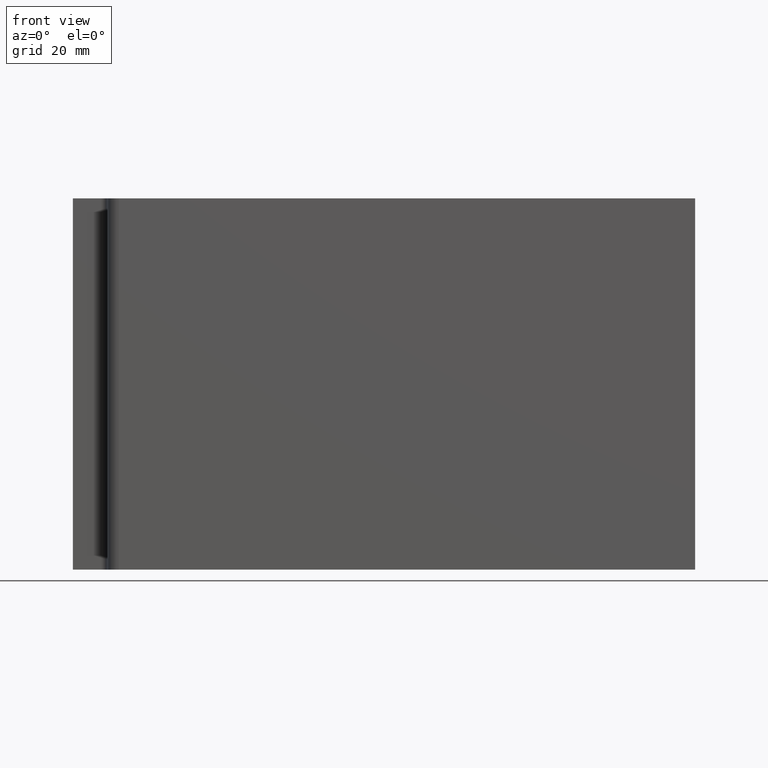
[diagram: clean part render]
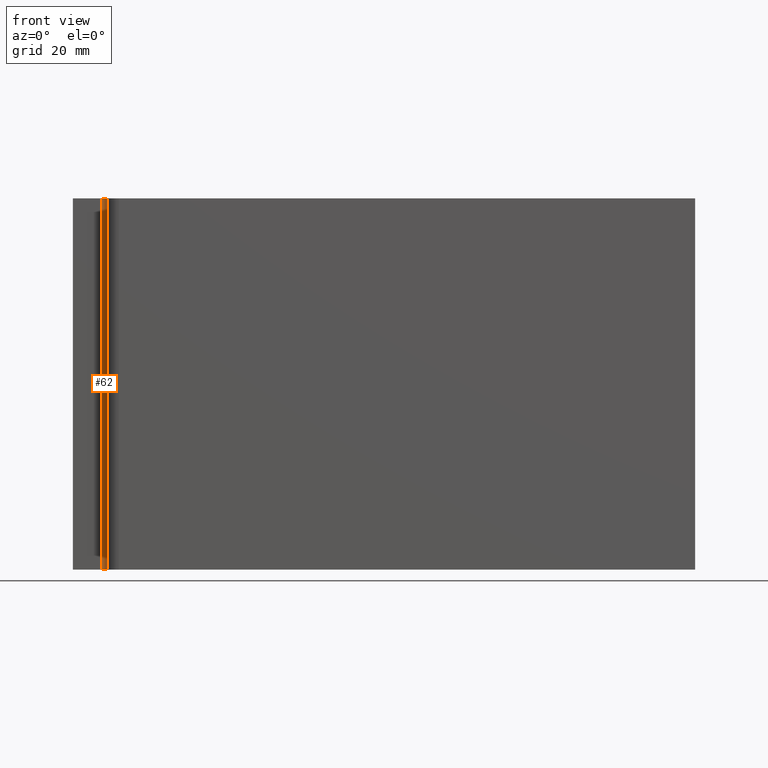
[diagram: same view with one face highlighted and labeled with its STEP entity id]
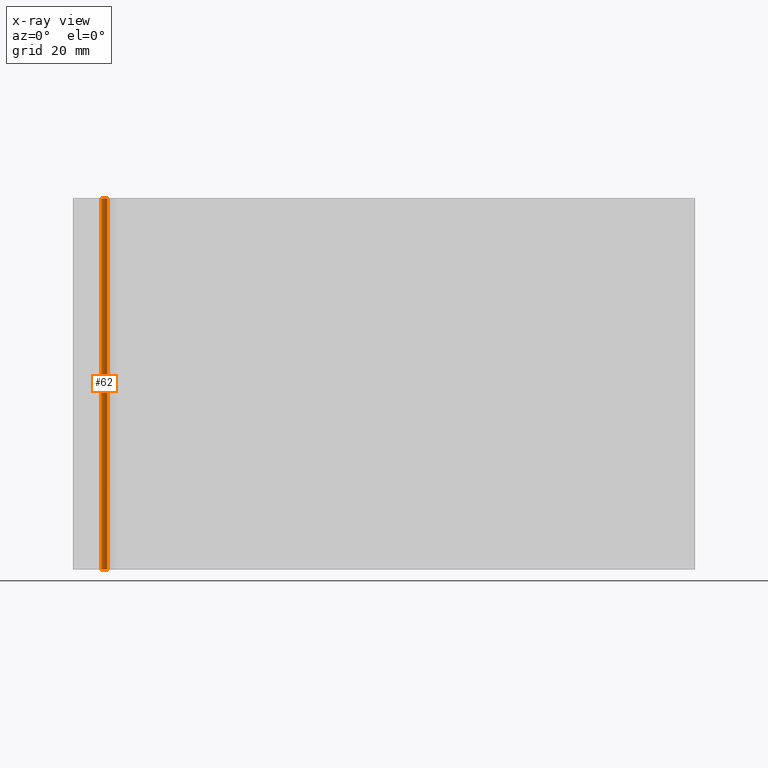
[diagram: x-ray of the same camera — body ghosted, the highlighted face saturated]
A machine part, front view. The second image highlights one B-rep face of the part: STEP entity #62.
The next image is the same camera in x-ray: the body ghosted, the highlighted face saturated — about 0% of this face is hidden behind the body in this view.
In plain terms, the highlighted cylindrical surface (edge-blend (fillet) strip) has radius 1.9 mm, axis along (-0, -0, -1).
Its self-contained STEP definition (entity closure, byte-faithful):
#28 = EDGE_CURVE ( 'NONE', #232, #219, #321, .T. ) ;
#29 = EDGE_CURVE ( 'NONE', #202, #232, #104, .T. ) ;
#37 = EDGE_CURVE ( 'NONE', #202, #198, #361, .T. ) ;
#54 = EDGE_CURVE ( 'NONE', #198, #219, #96, .T. ) ;
#62 = ADVANCED_FACE ( 'NONE', ( #404 ), #418, .F. ) ;
#85 = AXIS2_PLACEMENT_3D ( 'NONE', #412, #410, #399 ) ;
#86 = VECTOR ( 'NONE', #341, 1000.000000000000000 ) ;
#96 = CIRCLE ( 'NONE', #85, 1.900000000000000600 ) ;
#98 = VECTOR ( 'NONE', #354, 1000.000000000000000 ) ;
#104 = CIRCLE ( 'NONE', #105, 1.900000000000000600 ) ;
#105 = AXIS2_PLACEMENT_3D ( 'NONE', #332, #323, #301 ) ;
#121 = AXIS2_PLACEMENT_3D ( 'NONE', #407, #408, #409 ) ;
#154 = ORIENTED_EDGE ( 'NONE', *, *, #28, .F. ) ;
#161 = ORIENTED_EDGE ( 'NONE', *, *, #37, .T. ) ;
#177 = ORIENTED_EDGE ( 'NONE', *, *, #29, .F. ) ;
#183 = ORIENTED_EDGE ( 'NONE', *, *, #54, .T. ) ;
#198 = VERTEX_POINT ( 'NONE', #411 ) ;
#202 = VERTEX_POINT ( 'NONE', #488 ) ;
#219 = VERTEX_POINT ( 'NONE', #442 ) ;
#232 = VERTEX_POINT ( 'NONE', #489 ) ;
#285 = EDGE_LOOP ( 'NONE', ( #183, #154, #177, #161 ) ) ;
#301 = DIRECTION ( 'NONE',  ( -1.000000000000000000, 0.0000000000000000000, 0.0000000000000000000 ) ) ;
#320 = CARTESIAN_POINT ( 'NONE',  ( 11.09999999999999800, -1.899999999999999700, 120.0000000000000000 ) ) ;
#321 = LINE ( 'NONE', #320, #86 ) ;
#323 = DIRECTION ( 'NONE',  ( -0.0000000000000000000, -0.0000000000000000000, -1.000000000000000000 ) ) ;
#332 = CARTESIAN_POINT ( 'NONE',  ( 9.199999999999997500, -1.899999999999999900, 120.0000000000000000 ) ) ;
#341 = DIRECTION ( 'NONE',  ( -0.0000000000000000000, -0.0000000000000000000, -1.000000000000000000 ) ) ;
#354 = DIRECTION ( 'NONE',  ( -0.0000000000000000000, -0.0000000000000000000, -1.000000000000000000 ) ) ;
#360 = CARTESIAN_POINT ( 'NONE',  ( 9.199999999999997500, 0.0000000000000000000, 120.0000000000000000 ) ) ;
#361 = LINE ( 'NONE', #360, #98 ) ;
#399 = DIRECTION ( 'NONE',  ( -1.000000000000000000, 0.0000000000000000000, 0.0000000000000000000 ) ) ;
#404 = FACE_OUTER_BOUND ( 'NONE', #285, .T. ) ;
#407 = CARTESIAN_POINT ( 'NONE',  ( 9.199999999999997500, -1.899999999999999900, 120.0000000000000000 ) ) ;
#408 = DIRECTION ( 'NONE',  ( -0.0000000000000000000, -0.0000000000000000000, -1.000000000000000000 ) ) ;
#409 = DIRECTION ( 'NONE',  ( -1.000000000000000000, 0.0000000000000000000, 0.0000000000000000000 ) ) ;
#410 = DIRECTION ( 'NONE',  ( -0.0000000000000000000, -0.0000000000000000000, -1.000000000000000000 ) ) ;
#411 = CARTESIAN_POINT ( 'NONE',  ( 9.199999999999997500, 0.0000000000000000000, 0.0000000000000000000 ) ) ;
#412 = CARTESIAN_POINT ( 'NONE',  ( 9.199999999999997500, -1.899999999999999900, 0.0000000000000000000 ) ) ;
#418 = CYLINDRICAL_SURFACE ( 'NONE', #121, 1.900000000000000600 ) ;
#442 = CARTESIAN_POINT ( 'NONE',  ( 11.09999999999999800, -1.899999999999999700, 0.0000000000000000000 ) ) ;
#488 = CARTESIAN_POINT ( 'NONE',  ( 9.199999999999997500, 0.0000000000000000000, 120.0000000000000000 ) ) ;
#489 = CARTESIAN_POINT ( 'NONE',  ( 11.09999999999999800, -1.899999999999999700, 120.0000000000000000 ) ) ;